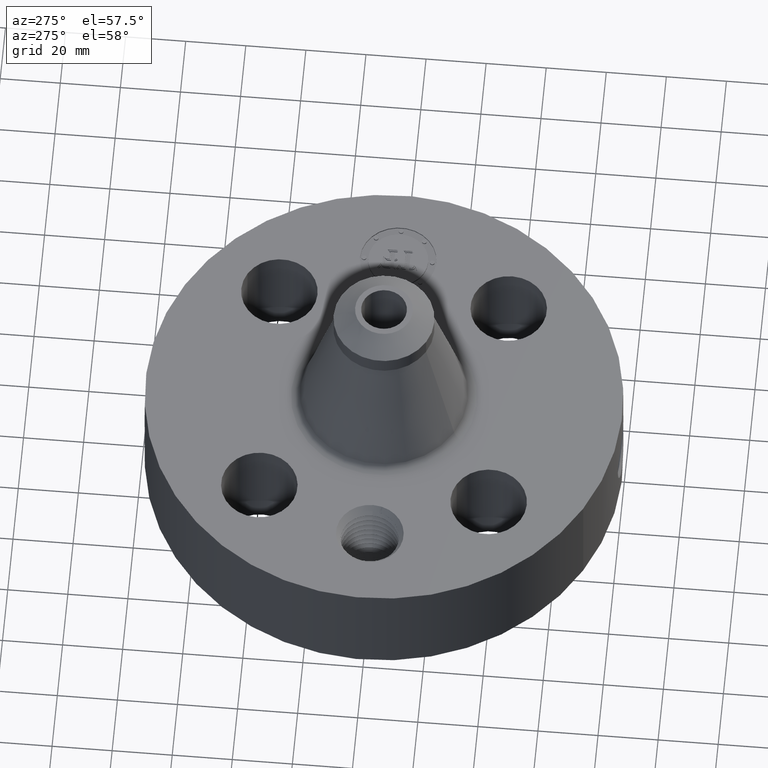
[diagram: clean part render]
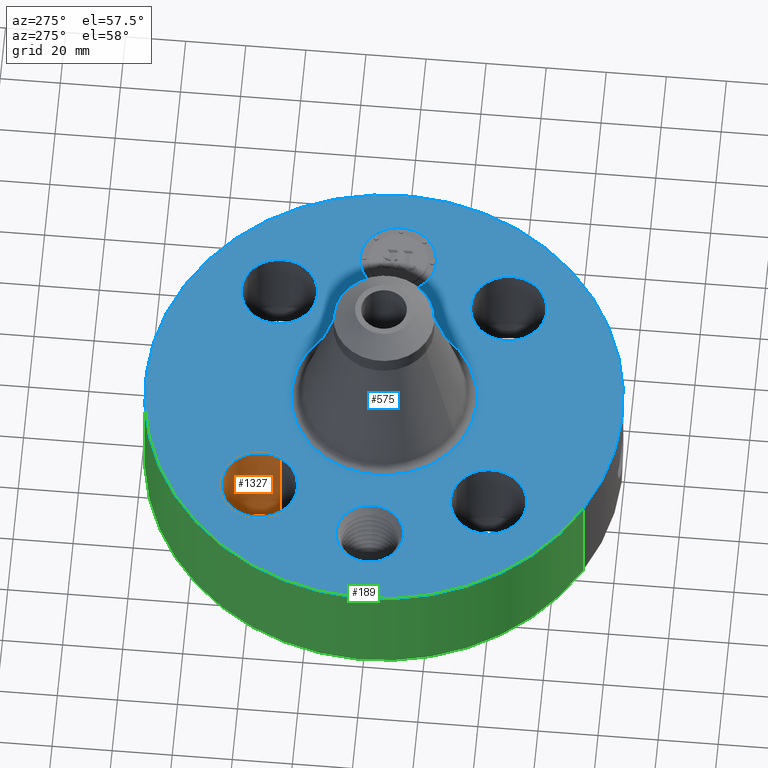
[diagram: same view with three faces highlighted in distinct colors, each labeled with its STEP entity id]
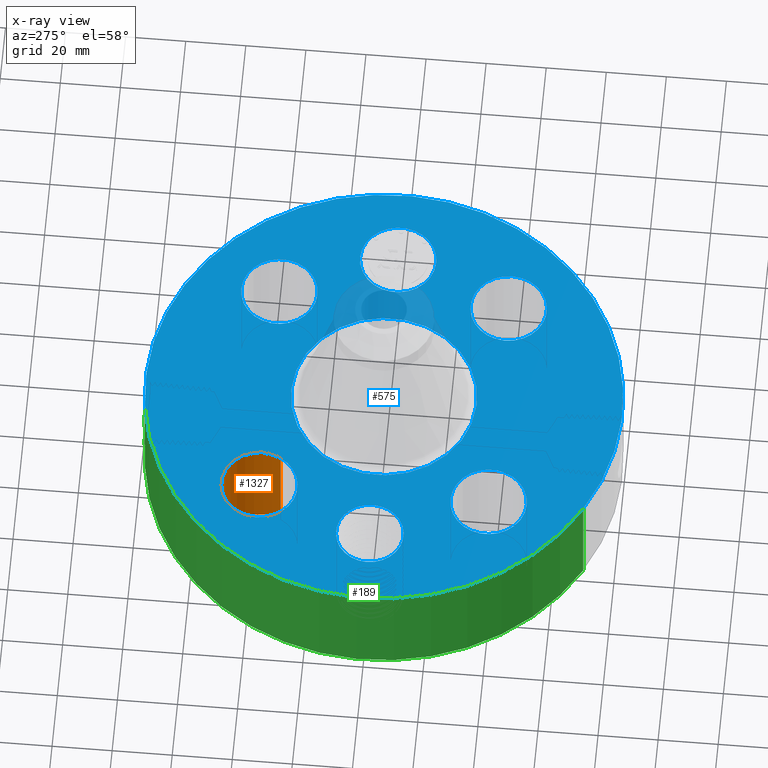
[diagram: x-ray of the same camera — body ghosted, the three highlighted faces saturated]
A machine part, auxiliary view with three faces highlighted in distinct colors.
The next image is the same camera in x-ray (body ghosted, the three faces saturated) — at least one of them is partly hidden behind the body in this view.
Their STEP definitions:

[orange] entity #1327 — the highlighted cylindrical surface (partial cylindrical patch) has radius 12.7 mm, axis along (-0, 0, -1).
#287=AXIS2_PLACEMENT_3D('Circle Axis2P3D',#285,#286,$) ;
#523=AXIS2_PLACEMENT_3D('Circle Axis2P3D',#521,#522,$) ;
#1302=AXIS2_PLACEMENT_3D('Cylinder Axis2P3D',#1299,#1300,#1301) ;
#280=CARTESIAN_POINT('Vertex',(-1.06381062908,1.26288914072,0.250000000001)) ;
#282=CARTESIAN_POINT('Vertex',(-1.94139319097,1.74231467933,0.250000000001)) ;
#285=CARTESIAN_POINT('Axis2P3D Location',(-1.50260191003,1.50260191003,0.250000000001)) ;
#521=CARTESIAN_POINT('Axis2P3D Location',(-1.50260191003,1.50260191003,1.75000000001)) ;
#525=CARTESIAN_POINT('Vertex',(-1.94139319097,1.74231467933,1.75000000001)) ;
#527=CARTESIAN_POINT('Vertex',(-1.06381062908,1.26288914072,1.75000000001)) ;
#1299=CARTESIAN_POINT('Axis2P3D Location',(-1.50260191003,1.50260191003,1.74606299213)) ;
#1304=CARTESIAN_POINT('Line Origine',(-1.06381062908,1.26288914072,1.)) ;
#1309=CARTESIAN_POINT('Line Origine',(-1.94139319097,1.74231467933,1.)) ;
#286=DIRECTION('Axis2P3D Direction',(0.,0.,-0.0393700787402)) ;
#522=DIRECTION('Axis2P3D Direction',(0.,0.,-0.0393700787402)) ;
#1300=DIRECTION('Axis2P3D Direction',(-0.,0.,-0.0393700787402)) ;
#1301=DIRECTION('Axis2P3D XDirection',(-0.0345504945626,0.0188750212049,0.)) ;
#1305=DIRECTION('Vector Direction',(0.,0.,-0.0393700787402)) ;
#1310=DIRECTION('Vector Direction',(0.,0.,-0.0393700787402)) ;
#1306=VECTOR('Line Direction',#1305,0.0393700787402) ;
#1311=VECTOR('Line Direction',#1310,0.0393700787402) ;
#1322=ORIENTED_EDGE('',*,*,#1313,.F.) ;
#1323=ORIENTED_EDGE('',*,*,#289,.T.) ;
#1324=ORIENTED_EDGE('',*,*,#1308,.T.) ;
#1325=ORIENTED_EDGE('',*,*,#529,.F.) ;
#1327=ADVANCED_FACE('PartBody',(#1326),#1303,.F.) ;
#288=CIRCLE('generated circle',#287,0.500000000002) ;
#524=CIRCLE('generated circle',#523,0.500000000002) ;
#1303=CYLINDRICAL_SURFACE('generated cylinder',#1302,0.500000000002) ;
#289=EDGE_CURVE('',#283,#281,#288,.T.) ;
#529=EDGE_CURVE('',#526,#528,#524,.T.) ;
#1308=EDGE_CURVE('',#281,#528,#1307,.F.) ;
#1313=EDGE_CURVE('',#283,#526,#1312,.F.) ;
#1321=EDGE_LOOP('',(#1322,#1323,#1324,#1325)) ;
#1326=FACE_OUTER_BOUND('',#1321,.T.) ;
#1307=LINE('Line',#1304,#1306) ;
#1312=LINE('Line',#1309,#1311) ;
#281=VERTEX_POINT('',#280) ;
#283=VERTEX_POINT('',#282) ;
#526=VERTEX_POINT('',#525) ;
#528=VERTEX_POINT('',#527) ;

[blue] entity #575 — the highlighted planar face has unit normal (0, 0, -1).
#58=AXIS2_PLACEMENT_3D('Circle Axis2P3D',#56,#57,$) ;
#315=AXIS2_PLACEMENT_3D('Circle Axis2P3D',#313,#314,$) ;
#443=AXIS2_PLACEMENT_3D('Plane Axis2P3D',#440,#441,#442) ;
#451=AXIS2_PLACEMENT_3D('Circle Axis2P3D',#449,#450,$) ;
#460=AXIS2_PLACEMENT_3D('Circle Axis2P3D',#458,#459,$) ;
#469=AXIS2_PLACEMENT_3D('Circle Axis2P3D',#467,#468,$) ;
#478=AXIS2_PLACEMENT_3D('Circle Axis2P3D',#476,#477,$) ;
#487=AXIS2_PLACEMENT_3D('Circle Axis2P3D',#485,#486,$) ;
#496=AXIS2_PLACEMENT_3D('Circle Axis2P3D',#494,#495,$) ;
#505=AXIS2_PLACEMENT_3D('Circle Axis2P3D',#503,#504,$) ;
#514=AXIS2_PLACEMENT_3D('Circle Axis2P3D',#512,#513,$) ;
#523=AXIS2_PLACEMENT_3D('Circle Axis2P3D',#521,#522,$) ;
#532=AXIS2_PLACEMENT_3D('Circle Axis2P3D',#530,#531,$) ;
#541=AXIS2_PLACEMENT_3D('Circle Axis2P3D',#539,#540,$) ;
#550=AXIS2_PLACEMENT_3D('Circle Axis2P3D',#548,#549,$) ;
#559=AXIS2_PLACEMENT_3D('Circle Axis2P3D',#557,#558,$) ;
#568=AXIS2_PLACEMENT_3D('Circle Axis2P3D',#566,#567,$) ;
#53=CARTESIAN_POINT('Vertex',(-1.49820480814,-2.74244550592,1.75000000001)) ;
#56=CARTESIAN_POINT('Axis2P3D Location',(0.,0.,1.75000000001)) ;
#60=CARTESIAN_POINT('Vertex',(1.49820480814,2.74244550592,1.75000000001)) ;
#313=CARTESIAN_POINT('Axis2P3D Location',(0.,0.,1.75000000001)) ;
#440=CARTESIAN_POINT('Axis2P3D Location',(0.,3.12500000001,1.75000000001)) ;
#449=CARTESIAN_POINT('Axis2P3D Location',(-2.12500000001,-5.59482469102E-016,1.75000000001)) ;
#453=CARTESIAN_POINT('Vertex',(-2.51359355842,0.212289628495,1.75000000001)) ;
#455=CARTESIAN_POINT('Vertex',(-1.7364064416,-0.212289628495,1.75000000001)) ;
#458=CARTESIAN_POINT('Axis2P3D Location',(-2.12500000001,-5.59482469102E-016,1.75000000001)) ;
#467=CARTESIAN_POINT('Axis2P3D Location',(1.50260191003,-1.50260191003,1.75000000001)) ;
#471=CARTESIAN_POINT('Vertex',(1.06381062908,-1.26288914072,1.75000000001)) ;
#473=CARTESIAN_POINT('Vertex',(1.94139319097,-1.74231467933,1.75000000001)) ;
#476=CARTESIAN_POINT('Axis2P3D Location',(1.50260191003,-1.50260191003,1.75000000001)) ;
#485=CARTESIAN_POINT('Axis2P3D Location',(0.,0.,1.75000000001)) ;
#489=CARTESIAN_POINT('Vertex',(-0.583037222207,-1.06724247655,1.75000000001)) ;
#491=CARTESIAN_POINT('Vertex',(0.583037222207,1.06724247655,1.75000000001)) ;
#494=CARTESIAN_POINT('Axis2P3D Location',(0.,0.,1.75000000001)) ;
#503=CARTESIAN_POINT('Axis2P3D Location',(-1.50260191003,-1.50260191003,1.75000000001)) ;
#507=CARTESIAN_POINT('Vertex',(-1.74231467933,-1.94139319097,1.75000000001)) ;
#509=CARTESIAN_POINT('Vertex',(-1.26288914072,-1.06381062908,1.75000000001)) ;
#512=CARTESIAN_POINT('Axis2P3D Location',(-1.50260191003,-1.50260191003,1.75000000001)) ;
#521=CARTESIAN_POINT('Axis2P3D Location',(-1.50260191003,1.50260191003,1.75000000001)) ;
#525=CARTESIAN_POINT('Vertex',(-1.94139319097,1.74231467933,1.75000000001)) ;
#527=CARTESIAN_POINT('Vertex',(-1.06381062908,1.26288914072,1.75000000001)) ;
#530=CARTESIAN_POINT('Axis2P3D Location',(-1.50260191003,1.50260191003,1.75000000001)) ;
#539=CARTESIAN_POINT('Axis2P3D Location',(1.50260191003,1.50260191003,1.75000000001)) ;
#543=CARTESIAN_POINT('Vertex',(1.74231467933,1.94139319097,1.75000000001)) ;
#545=CARTESIAN_POINT('Vertex',(1.26288914072,1.06381062908,1.75000000001)) ;
#548=CARTESIAN_POINT('Axis2P3D Location',(1.50260191003,1.50260191003,1.75000000001)) ;
#557=CARTESIAN_POINT('Axis2P3D Location',(2.12500000001,-5.59482469102E-015,1.75000000001)) ;
#561=CARTESIAN_POINT('Vertex',(2.12500000001,0.499999995002,1.75000000001)) ;
#563=CARTESIAN_POINT('Vertex',(2.12500000001,-0.499999995002,1.75000000001)) ;
#566=CARTESIAN_POINT('Axis2P3D Location',(2.12500000001,-5.59482469102E-015,1.75000000001)) ;
#57=DIRECTION('Axis2P3D Direction',(0.,0.,-0.0393700787402)) ;
#314=DIRECTION('Axis2P3D Direction',(0.,0.,-0.0393700787402)) ;
#441=DIRECTION('Axis2P3D Direction',(0.,0.,-0.0393700787402)) ;
#442=DIRECTION('Axis2P3D XDirection',(0.0393700787402,0.,0.)) ;
#450=DIRECTION('Axis2P3D Direction',(0.,0.,-0.0393700787402)) ;
#459=DIRECTION('Axis2P3D Direction',(0.,0.,-0.0393700787402)) ;
#468=DIRECTION('Axis2P3D Direction',(0.,0.,-0.0393700787402)) ;
#477=DIRECTION('Axis2P3D Direction',(0.,0.,-0.0393700787402)) ;
#486=DIRECTION('Axis2P3D Direction',(0.,0.,-0.0393700787402)) ;
#495=DIRECTION('Axis2P3D Direction',(0.,0.,-0.0393700787402)) ;
#504=DIRECTION('Axis2P3D Direction',(0.,0.,-0.0393700787402)) ;
#513=DIRECTION('Axis2P3D Direction',(0.,0.,-0.0393700787402)) ;
#522=DIRECTION('Axis2P3D Direction',(0.,0.,-0.0393700787402)) ;
#531=DIRECTION('Axis2P3D Direction',(0.,0.,-0.0393700787402)) ;
#540=DIRECTION('Axis2P3D Direction',(0.,0.,-0.0393700787402)) ;
#549=DIRECTION('Axis2P3D Direction',(0.,0.,-0.0393700787402)) ;
#558=DIRECTION('Axis2P3D Direction',(0.,0.,-0.0393700787402)) ;
#567=DIRECTION('Axis2P3D Direction',(0.,0.,-0.0393700787402)) ;
#446=ORIENTED_EDGE('',*,*,#317,.F.) ;
#447=ORIENTED_EDGE('',*,*,#62,.F.) ;
#464=ORIENTED_EDGE('',*,*,#457,.T.) ;
#465=ORIENTED_EDGE('',*,*,#462,.T.) ;
#482=ORIENTED_EDGE('',*,*,#475,.T.) ;
#483=ORIENTED_EDGE('',*,*,#480,.T.) ;
#500=ORIENTED_EDGE('',*,*,#493,.T.) ;
#501=ORIENTED_EDGE('',*,*,#498,.T.) ;
#518=ORIENTED_EDGE('',*,*,#511,.T.) ;
#519=ORIENTED_EDGE('',*,*,#516,.T.) ;
#536=ORIENTED_EDGE('',*,*,#529,.T.) ;
#537=ORIENTED_EDGE('',*,*,#534,.T.) ;
#554=ORIENTED_EDGE('',*,*,#547,.T.) ;
#555=ORIENTED_EDGE('',*,*,#552,.T.) ;
#572=ORIENTED_EDGE('',*,*,#565,.T.) ;
#573=ORIENTED_EDGE('',*,*,#570,.T.) ;
#466=FACE_BOUND('',#463,.T.) ;
#484=FACE_BOUND('',#481,.T.) ;
#502=FACE_BOUND('',#499,.T.) ;
#520=FACE_BOUND('',#517,.T.) ;
#538=FACE_BOUND('',#535,.T.) ;
#556=FACE_BOUND('',#553,.T.) ;
#574=FACE_BOUND('',#571,.T.) ;
#575=ADVANCED_FACE('PartBody',(#448,#466,#484,#502,#520,#538,#556,#574),#444,.F.) ;
#59=CIRCLE('generated circle',#58,3.12500000001) ;
#316=CIRCLE('generated circle',#315,3.12500000001) ;
#452=CIRCLE('generated circle',#451,0.442800000002) ;
#461=CIRCLE('generated circle',#460,0.442800000002) ;
#470=CIRCLE('generated circle',#469,0.500000000002) ;
#479=CIRCLE('generated circle',#478,0.500000000002) ;
#488=CIRCLE('generated circle',#487,1.21611632101) ;
#497=CIRCLE('generated circle',#496,1.21611632101) ;
#506=CIRCLE('generated circle',#505,0.500000000002) ;
#515=CIRCLE('generated circle',#514,0.500000000002) ;
#524=CIRCLE('generated circle',#523,0.500000000002) ;
#533=CIRCLE('generated circle',#532,0.500000000002) ;
#542=CIRCLE('generated circle',#541,0.500000000002) ;
#551=CIRCLE('generated circle',#550,0.500000000002) ;
#560=CIRCLE('generated circle',#559,0.499999995002) ;
#569=CIRCLE('generated circle',#568,0.499999995002) ;
#62=EDGE_CURVE('',#54,#61,#59,.T.) ;
#317=EDGE_CURVE('',#61,#54,#316,.T.) ;
#457=EDGE_CURVE('',#454,#456,#452,.T.) ;
#462=EDGE_CURVE('',#456,#454,#461,.T.) ;
#475=EDGE_CURVE('',#472,#474,#470,.T.) ;
#480=EDGE_CURVE('',#474,#472,#479,.T.) ;
#493=EDGE_CURVE('',#490,#492,#488,.T.) ;
#498=EDGE_CURVE('',#492,#490,#497,.T.) ;
#511=EDGE_CURVE('',#508,#510,#506,.T.) ;
#516=EDGE_CURVE('',#510,#508,#515,.T.) ;
#529=EDGE_CURVE('',#526,#528,#524,.T.) ;
#534=EDGE_CURVE('',#528,#526,#533,.T.) ;
#547=EDGE_CURVE('',#544,#546,#542,.T.) ;
#552=EDGE_CURVE('',#546,#544,#551,.T.) ;
#565=EDGE_CURVE('',#562,#564,#560,.T.) ;
#570=EDGE_CURVE('',#564,#562,#569,.T.) ;
#445=EDGE_LOOP('',(#446,#447)) ;
#463=EDGE_LOOP('',(#464,#465)) ;
#481=EDGE_LOOP('',(#482,#483)) ;
#499=EDGE_LOOP('',(#500,#501)) ;
#517=EDGE_LOOP('',(#518,#519)) ;
#535=EDGE_LOOP('',(#536,#537)) ;
#553=EDGE_LOOP('',(#554,#555)) ;
#571=EDGE_LOOP('',(#572,#573)) ;
#448=FACE_OUTER_BOUND('',#445,.T.) ;
#444=PLANE('',#443) ;
#54=VERTEX_POINT('',#53) ;
#61=VERTEX_POINT('',#60) ;
#454=VERTEX_POINT('',#453) ;
#456=VERTEX_POINT('',#455) ;
#472=VERTEX_POINT('',#471) ;
#474=VERTEX_POINT('',#473) ;
#490=VERTEX_POINT('',#489) ;
#492=VERTEX_POINT('',#491) ;
#508=VERTEX_POINT('',#507) ;
#510=VERTEX_POINT('',#509) ;
#526=VERTEX_POINT('',#525) ;
#528=VERTEX_POINT('',#527) ;
#544=VERTEX_POINT('',#543) ;
#546=VERTEX_POINT('',#545) ;
#562=VERTEX_POINT('',#561) ;
#564=VERTEX_POINT('',#563) ;

[green] entity #189 — the highlighted cylindrical surface (partial cylindrical patch) has radius 79.375 mm, axis along (0, 0, -1).
#38=AXIS2_PLACEMENT_3D('Cylinder Axis2P3D',#35,#36,#37) ;
#42=AXIS2_PLACEMENT_3D('Circle Axis2P3D',#40,#41,$) ;
#58=AXIS2_PLACEMENT_3D('Circle Axis2P3D',#56,#57,$) ;
#35=CARTESIAN_POINT('Axis2P3D Location',(0.,0.,2.06000000001)) ;
#40=CARTESIAN_POINT('Axis2P3D Location',(0.,0.,0.250000000001)) ;
#44=CARTESIAN_POINT('Vertex',(-1.49820480814,-2.74244550592,0.250000000001)) ;
#46=CARTESIAN_POINT('Vertex',(1.49820480814,2.74244550592,0.250000000001)) ;
#49=CARTESIAN_POINT('Line Origine',(-1.49820480814,-2.74244550592,1.)) ;
#53=CARTESIAN_POINT('Vertex',(-1.49820480814,-2.74244550592,1.75000000001)) ;
#56=CARTESIAN_POINT('Axis2P3D Location',(0.,0.,1.75000000001)) ;
#60=CARTESIAN_POINT('Vertex',(1.49820480814,2.74244550592,1.75000000001)) ;
#63=CARTESIAN_POINT('Line Origine',(1.49820480814,2.74244550592,1.)) ;
#75=CARTESIAN_POINT('Control Point',(-0.169704717538,3.1203886471,1.25064240177)) ;
#76=CARTESIAN_POINT('Control Point',(-0.131083897926,3.12248906984,1.27181584559)) ;
#77=CARTESIAN_POINT('Control Point',(-0.0889131026658,3.12414682281,1.28658641962)) ;
#78=CARTESIAN_POINT('Control Point',(-0.0448186296693,3.1249897837,1.29402879621)) ;
#79=CARTESIAN_POINT('Control Point',(-0.000718090173626,3.12499991751,1.2941184944)) ;
#80=CARTESIAN_POINT('Vertex',(-0.169704717538,3.1203886471,1.25064240177)) ;
#82=CARTESIAN_POINT('Vertex',(-0.000717741474434,3.12499991759,1.29411850437)) ;
#86=CARTESIAN_POINT('Control Point',(-0.21482816623,3.11760707259,1.22122183656)) ;
#87=CARTESIAN_POINT('Control Point',(-0.200567304466,3.1185897605,1.23215449373)) ;
#88=CARTESIAN_POINT('Control Point',(-0.185468727421,3.11953130939,1.24199995501)) ;
#89=CARTESIAN_POINT('Control Point',(-0.169704717538,3.1203886471,1.25064240177)) ;
#90=CARTESIAN_POINT('Vertex',(-0.214819345972,3.11760742907,1.22122858909)) ;
#94=CARTESIAN_POINT('Control Point',(-0.34931949655,3.1054147693,0.885751642197)) ;
#95=CARTESIAN_POINT('Control Point',(-0.367742420812,3.10334242564,0.959887140028)) ;
#96=CARTESIAN_POINT('Control Point',(-0.362872225575,3.10371964554,1.0413133541)) ;
#97=CARTESIAN_POINT('Control Point',(-0.328329978563,3.10823670758,1.11718142731)) ;
#98=CARTESIAN_POINT('Control Point',(-0.277094139327,3.11331662871,1.17702051887)) ;
#99=CARTESIAN_POINT('Control Point',(-0.214819109822,3.11760769664,1.2212282695)) ;
#100=CARTESIAN_POINT('Vertex',(-0.349319928734,3.10541445456,0.885751308588)) ;
#104=CARTESIAN_POINT('Control Point',(-0.343314957303,3.10608432599,0.855638008858)) ;
#105=CARTESIAN_POINT('Control Point',(-0.345750264288,3.10581515194,0.86558377003)) ;
#106=CARTESIAN_POINT('Control Point',(-0.347754761927,3.10559078261,0.875635941714)) ;
#107=CARTESIAN_POINT('Control Point',(-0.349320760915,3.10541462708,0.885756640585)) ;
#108=CARTESIAN_POINT('Vertex',(-0.343316357086,3.10608454015,0.855643509776)) ;
#112=CARTESIAN_POINT('Control Point',(-0.0277254622303,3.12487700539,0.530955879279)) ;
#113=CARTESIAN_POINT('Control Point',(-0.0774180935185,3.12443610766,0.537426033597)) ;
#114=CARTESIAN_POINT('Control Point',(-0.125647766237,3.12302033035,0.553124237549)) ;
#115=CARTESIAN_POINT('Control Point',(-0.169868141975,3.12077102491,0.57740481987)) ;
#116=CARTESIAN_POINT('Control Point',(-0.24773486005,3.11560980489,0.639013433564)) ;
#117=CARTESIAN_POINT('Control Point',(-0.301618402074,3.11055308848,0.719926825309)) ;
#118=CARTESIAN_POINT('Control Point',(-0.322082740203,3.10840919462,0.763713133637)) ;
#119=CARTESIAN_POINT('Control Point',(-0.335978455052,3.10689523042,0.809331106585)) ;
#120=CARTESIAN_POINT('Control Point',(-0.343315844205,3.10608422796,0.855643688585)) ;
#121=CARTESIAN_POINT('Vertex',(-0.0277254622303,3.12487700539,0.530955879279)) ;
#125=CARTESIAN_POINT('Control Point',(-0.0277254622303,3.12487700539,0.530955879279)) ;
#126=CARTESIAN_POINT('Control Point',(-0.0184757577996,3.12495907337,0.530843344552)) ;
#127=CARTESIAN_POINT('Control Point',(-0.00922750854697,3.12500000807,0.530982960264)) ;
#128=CARTESIAN_POINT('Control Point',(2.72878353669E-006,3.12500000001,0.531374667804)) ;
#129=CARTESIAN_POINT('Vertex',(2.72878353562E-006,3.12500000001,0.531374667804)) ;
#133=CARTESIAN_POINT('Control Point',(0.196165446846,3.11883698156,0.580926701888)) ;
#134=CARTESIAN_POINT('Control Point',(0.135166038389,3.12267366052,0.550852314672)) ;
#135=CARTESIAN_POINT('Control Point',(0.0679576699107,3.12499994067,0.534258500681)) ;
#136=CARTESIAN_POINT('Control Point',(2.72878353666E-006,3.12500000001,0.531374667804)) ;
#137=CARTESIAN_POINT('Vertex',(0.196165446846,3.11883698156,0.580926701888)) ;
#141=CARTESIAN_POINT('Control Point',(0.208430673671,3.11804131697,0.587200737705)) ;
#142=CARTESIAN_POINT('Control Point',(0.204372491256,3.11831259295,0.585048398356)) ;
#143=CARTESIAN_POINT('Control Point',(0.200283249719,3.11857798417,0.582956892053)) ;
#144=CARTESIAN_POINT('Control Point',(0.196165446846,3.11883698156,0.580926701888)) ;
#145=CARTESIAN_POINT('Vertex',(0.208430673671,3.11804131697,0.587200737705)) ;
#149=CARTESIAN_POINT('Control Point',(0.208430673671,3.11804131697,0.587200737705)) ;
#150=CARTESIAN_POINT('Control Point',(0.26086450673,3.11453628993,0.621760934521)) ;
#151=CARTESIAN_POINT('Control Point',(0.305853128431,3.11042184836,0.667063833411)) ;
#152=CARTESIAN_POINT('Control Point',(0.341117340448,3.106504395,0.719732581887)) ;
#153=CARTESIAN_POINT('Control Point',(0.388122970502,3.10089437133,0.824758887651)) ;
#154=CARTESIAN_POINT('Control Point',(0.402021849757,3.09902386812,0.938522717933)) ;
#155=CARTESIAN_POINT('Control Point',(0.401434797633,3.09910244667,0.990960622342)) ;
#156=CARTESIAN_POINT('Control Point',(0.393890462861,3.10011096842,1.0430103703)) ;
#157=CARTESIAN_POINT('Control Point',(0.379413668188,3.10188173025,1.0934354383)) ;
#158=CARTESIAN_POINT('Vertex',(0.379413668188,3.10188173025,1.0934354383)) ;
#162=CARTESIAN_POINT('Control Point',(0.379413668188,3.10188173025,1.0934354383)) ;
#163=CARTESIAN_POINT('Control Point',(0.333043378899,3.10755361689,1.17499039911)) ;
#164=CARTESIAN_POINT('Control Point',(0.261045420742,3.11551492819,1.23977072285)) ;
#165=CARTESIAN_POINT('Control Point',(0.176679220046,3.12196183645,1.28008186732)) ;
#166=CARTESIAN_POINT('Control Point',(0.087479490546,3.12500072397,1.29844239313)) ;
#167=CARTESIAN_POINT('Control Point',(-2.58579354939E-005,3.12499999991,1.29415298443)) ;
#168=CARTESIAN_POINT('Vertex',(-2.58579354925E-005,3.12499999991,1.29415298443)) ;
#172=CARTESIAN_POINT('Control Point',(-0.000717741460535,3.12499991759,1.29411850435)) ;
#173=CARTESIAN_POINT('Control Point',(-0.000371821821211,3.12499999704,1.29413602569)) ;
#174=CARTESIAN_POINT('Control Point',(-2.58579457551E-005,3.12499999991,1.29415298442)) ;
#36=DIRECTION('Axis2P3D Direction',(0.,0.,-0.0393700787402)) ;
#37=DIRECTION('Axis2P3D XDirection',(0.0188750212049,0.0345504945626,0.)) ;
#41=DIRECTION('Axis2P3D Direction',(0.,0.,-0.0393700787402)) ;
#50=DIRECTION('Vector Direction',(0.,0.,-0.0393700787402)) ;
#57=DIRECTION('Axis2P3D Direction',(0.,0.,-0.0393700787402)) ;
#64=DIRECTION('Vector Direction',(0.,0.,-0.0393700787402)) ;
#51=VECTOR('Line Direction',#50,0.0393700787402) ;
#65=VECTOR('Line Direction',#64,0.0393700787402) ;
#69=ORIENTED_EDGE('',*,*,#48,.F.) ;
#70=ORIENTED_EDGE('',*,*,#55,.T.) ;
#71=ORIENTED_EDGE('',*,*,#62,.T.) ;
#72=ORIENTED_EDGE('',*,*,#67,.F.) ;
#177=ORIENTED_EDGE('',*,*,#84,.F.) ;
#178=ORIENTED_EDGE('',*,*,#92,.F.) ;
#179=ORIENTED_EDGE('',*,*,#102,.F.) ;
#180=ORIENTED_EDGE('',*,*,#110,.F.) ;
#181=ORIENTED_EDGE('',*,*,#123,.F.) ;
#182=ORIENTED_EDGE('',*,*,#131,.T.) ;
#183=ORIENTED_EDGE('',*,*,#139,.F.) ;
#184=ORIENTED_EDGE('',*,*,#147,.F.) ;
#185=ORIENTED_EDGE('',*,*,#160,.T.) ;
#186=ORIENTED_EDGE('',*,*,#170,.T.) ;
#187=ORIENTED_EDGE('',*,*,#175,.F.) ;
#188=FACE_BOUND('',#176,.T.) ;
#189=ADVANCED_FACE('PartBody',(#73,#188),#39,.T.) ;
#74=B_SPLINE_CURVE_WITH_KNOTS('',4,(#75,#76,#77,#78,#79),.UNSPECIFIED.,.F.,.U.,(5,5),(0.,6.52343802572),.UNSPECIFIED.) ;
#85=B_SPLINE_CURVE_WITH_KNOTS('',3,(#86,#87,#88,#89),.UNSPECIFIED.,.F.,.U.,(4,4),(26.5413843768,28.538407146),.UNSPECIFIED.) ;
#93=B_SPLINE_CURVE_WITH_KNOTS('',5,(#94,#95,#96,#97,#98,#99),.UNSPECIFIED.,.F.,.U.,(6,6),(0.,14.2714475301),.UNSPECIFIED.) ;
#103=B_SPLINE_CURVE_WITH_KNOTS('',3,(#104,#105,#106,#107),.UNSPECIFIED.,.F.,.U.,(4,4),(11.3581884722,12.4955466915),.UNSPECIFIED.) ;
#111=B_SPLINE_CURVE_WITH_KNOTS('',5,(#112,#113,#114,#115,#116,#117,#118,#119,#120),.UNSPECIFIED.,.F.,.U.,(6,3,6),(0.,8.71048208751,17.4948935112),.UNSPECIFIED.) ;
#124=B_SPLINE_CURVE_WITH_KNOTS('',3,(#125,#126,#127,#128),.UNSPECIFIED.,.F.,.U.,(4,4),(0.,0.964667702995),.UNSPECIFIED.) ;
#132=B_SPLINE_CURVE_WITH_KNOTS('',3,(#133,#134,#135,#136),.UNSPECIFIED.,.F.,.U.,(4,4),(0.,7.10208574371),.UNSPECIFIED.) ;
#140=B_SPLINE_CURVE_WITH_KNOTS('',3,(#141,#142,#143,#144),.UNSPECIFIED.,.F.,.U.,(4,4),(0.,0.479430700485),.UNSPECIFIED.) ;
#148=B_SPLINE_CURVE_WITH_KNOTS('',5,(#149,#150,#151,#152,#153,#154,#155,#156,#157),.UNSPECIFIED.,.F.,.U.,(6,3,6),(0.,10.9217337295,20.0515719984),.UNSPECIFIED.) ;
#161=B_SPLINE_CURVE_WITH_KNOTS('',5,(#162,#163,#164,#165,#166,#167),.UNSPECIFIED.,.F.,.U.,(6,6),(0.,16.3565571124),.UNSPECIFIED.) ;
#171=B_SPLINE_CURVE_WITH_KNOTS('',2,(#172,#173,#174),.UNSPECIFIED.,.F.,.U.,(3,3),(1.18594957712,1.2118166972),.UNSPECIFIED.) ;
#43=CIRCLE('generated circle',#42,3.12500000001) ;
#59=CIRCLE('generated circle',#58,3.12500000001) ;
#39=CYLINDRICAL_SURFACE('generated cylinder',#38,3.12500000001) ;
#48=EDGE_CURVE('',#45,#47,#43,.T.) ;
#55=EDGE_CURVE('',#45,#54,#52,.F.) ;
#62=EDGE_CURVE('',#54,#61,#59,.T.) ;
#67=EDGE_CURVE('',#47,#61,#66,.F.) ;
#84=EDGE_CURVE('',#81,#83,#74,.T.) ;
#92=EDGE_CURVE('',#91,#81,#85,.T.) ;
#102=EDGE_CURVE('',#101,#91,#93,.T.) ;
#110=EDGE_CURVE('',#109,#101,#103,.T.) ;
#123=EDGE_CURVE('',#122,#109,#111,.T.) ;
#131=EDGE_CURVE('',#122,#130,#124,.T.) ;
#139=EDGE_CURVE('',#138,#130,#132,.T.) ;
#147=EDGE_CURVE('',#146,#138,#140,.T.) ;
#160=EDGE_CURVE('',#146,#159,#148,.T.) ;
#170=EDGE_CURVE('',#159,#169,#161,.T.) ;
#175=EDGE_CURVE('',#83,#169,#171,.T.) ;
#68=EDGE_LOOP('',(#69,#70,#71,#72)) ;
#176=EDGE_LOOP('',(#177,#178,#179,#180,#181,#182,#183,#184,#185,#186,#187)) ;
#73=FACE_OUTER_BOUND('',#68,.T.) ;
#52=LINE('Line',#49,#51) ;
#66=LINE('Line',#63,#65) ;
#45=VERTEX_POINT('',#44) ;
#47=VERTEX_POINT('',#46) ;
#54=VERTEX_POINT('',#53) ;
#61=VERTEX_POINT('',#60) ;
#81=VERTEX_POINT('',#80) ;
#83=VERTEX_POINT('',#82) ;
#91=VERTEX_POINT('',#90) ;
#101=VERTEX_POINT('',#100) ;
#109=VERTEX_POINT('',#108) ;
#122=VERTEX_POINT('',#121) ;
#130=VERTEX_POINT('',#129) ;
#138=VERTEX_POINT('',#137) ;
#146=VERTEX_POINT('',#145) ;
#159=VERTEX_POINT('',#158) ;
#169=VERTEX_POINT('',#168) ;